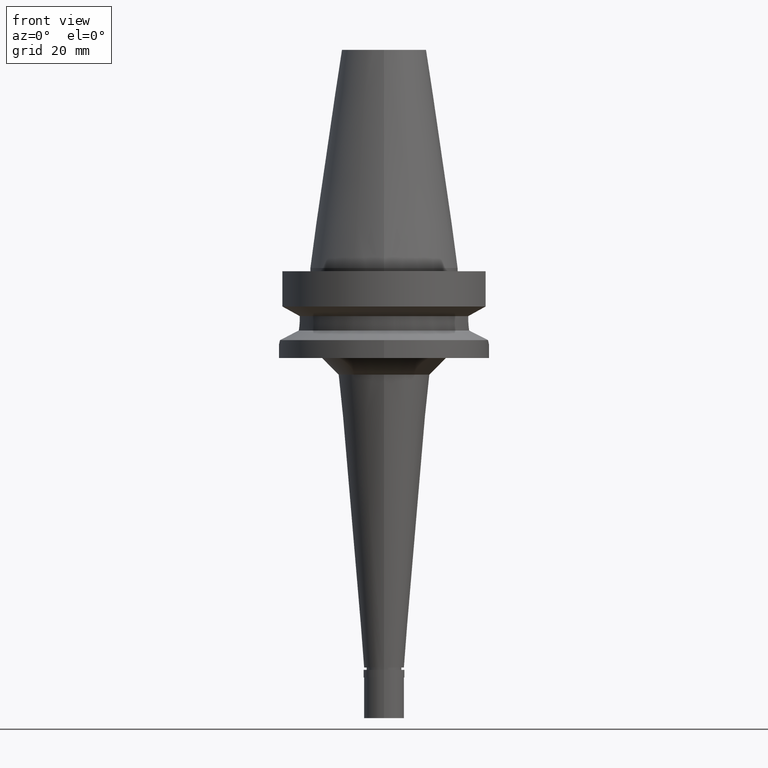
[diagram: clean part render]
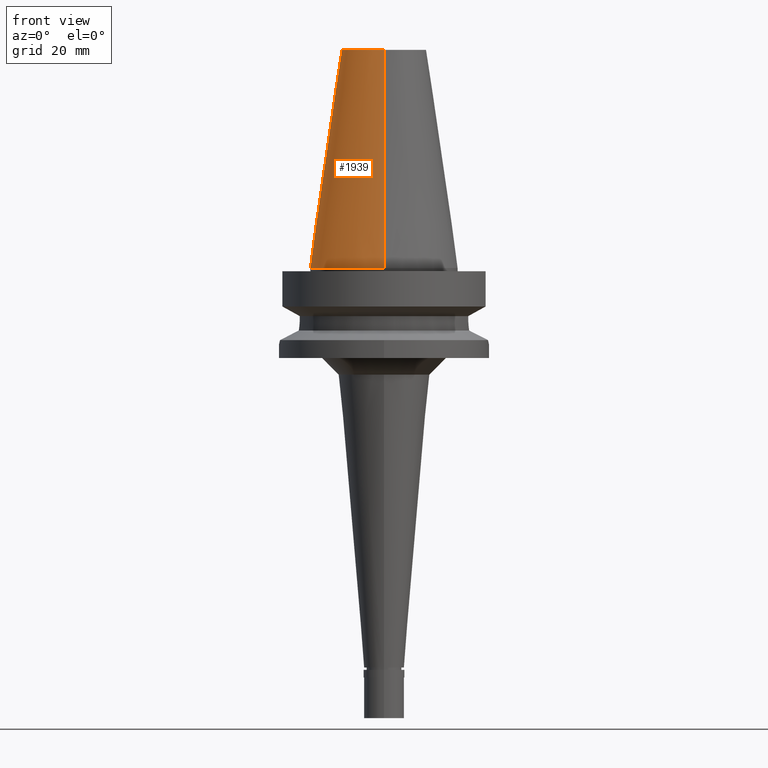
[diagram: same view with one face highlighted and labeled with its STEP entity id]
A machine part, front view. The second image highlights one B-rep face of the part: STEP entity #1939.
In plain terms, the highlighted conical surface has half-angle 8.297 deg.
Its self-contained STEP definition (entity closure, byte-faithful):
#29 = CARTESIAN_POINT ( 'NONE',  ( 0.0000000000000000000, -12.68766899429999917, 65.40000000000000568 ) ) ;
#145 = CARTESIAN_POINT ( 'NONE',  ( 0.0000000000000000000, 12.68766899429999917, 65.40000000000000568 ) ) ;
#172 = DIRECTION ( 'NONE',  ( 0.0000000000000000000, -1.000000000000000000, 0.0000000000000000000 ) ) ;
#195 = EDGE_CURVE ( 'NONE', #1043, #441, #510, .T. ) ;
#284 = CARTESIAN_POINT ( 'NONE',  ( 0.0000000000000000000, 1.625106302469000024E-14, 2.842170943039999687E-14 ) ) ;
#321 = CIRCLE ( 'NONE', #2685, 12.68766899429999917 ) ;
#403 = DIRECTION ( 'NONE',  ( 0.0000000000000000000, 0.0000000000000000000, -1.000000000000000000 ) ) ;
#441 = VERTEX_POINT ( 'NONE', #2623 ) ;
#510 = LINE ( 'NONE', #29, #756 ) ;
#548 = VECTOR ( 'NONE', #2291, 1000.000000000000114 ) ;
#756 = VECTOR ( 'NONE', #1013, 1000.000000000000114 ) ;
#762 = CARTESIAN_POINT ( 'NONE',  ( 0.0000000000000000000, 1.625106302469000024E-14, 32.70000000000000284 ) ) ;
#913 = VERTEX_POINT ( 'NONE', #1879 ) ;
#1013 = DIRECTION ( 'NONE',  ( 0.0000000000000000000, -0.1443043893539925626, -0.9895333461855498891 ) ) ;
#1020 = VERTEX_POINT ( 'NONE', #145 ) ;
#1043 = VERTEX_POINT ( 'NONE', #2417 ) ;
#1099 = CONICAL_SURFACE ( 'NONE', #2782, 17.45633449714999941, 0.1448099680379422438 ) ;
#1215 = DIRECTION ( 'NONE',  ( 0.0000000000000000000, 0.0000000000000000000, -1.000000000000000000 ) ) ;
#1218 = DIRECTION ( 'NONE',  ( 0.0000000000000000000, -1.000000000000000000, 0.0000000000000000000 ) ) ;
#1397 = EDGE_CURVE ( 'NONE', #1020, #913, #2107, .T. ) ;
#1615 = DIRECTION ( 'NONE',  ( 0.0000000000000000000, -1.000000000000000000, 0.0000000000000000000 ) ) ;
#1731 = DIRECTION ( 'NONE',  ( 0.0000000000000000000, 0.0000000000000000000, -1.000000000000000000 ) ) ;
#1812 = CIRCLE ( 'NONE', #2596, 22.22500000000000142 ) ;
#1816 = ORIENTED_EDGE ( 'NONE', *, *, #1397, .T. ) ;
#1838 = FACE_OUTER_BOUND ( 'NONE', #2966, .T. ) ;
#1879 = CARTESIAN_POINT ( 'NONE',  ( 0.0000000000000000000, 22.22500000000000142, 1.065814103639999827E-13 ) ) ;
#1939 = ADVANCED_FACE ( 'NONE', ( #1838 ), #1099, .T. ) ;
#1957 = ORIENTED_EDGE ( 'NONE', *, *, #2614, .T. ) ;
#2018 = ORIENTED_EDGE ( 'NONE', *, *, #195, .F. ) ;
#2107 = LINE ( 'NONE', #2565, #548 ) ;
#2291 = DIRECTION ( 'NONE',  ( 0.0000000000000000000, 0.1443043893539925626, -0.9895333461855498891 ) ) ;
#2417 = CARTESIAN_POINT ( 'NONE',  ( 0.0000000000000000000, -12.68766899429999917, 65.40000000000000568 ) ) ;
#2477 = CARTESIAN_POINT ( 'NONE',  ( 0.0000000000000000000, 1.625106302469000024E-14, 65.40000000000000568 ) ) ;
#2565 = CARTESIAN_POINT ( 'NONE',  ( 0.0000000000000000000, 12.68766899429999917, 65.40000000000000568 ) ) ;
#2596 = AXIS2_PLACEMENT_3D ( 'NONE', #284, #1731, #1218 ) ;
#2614 = EDGE_CURVE ( 'NONE', #1043, #1020, #321, .T. ) ;
#2623 = CARTESIAN_POINT ( 'NONE',  ( 0.0000000000000000000, -22.22500000000000142, 1.065814103639999827E-13 ) ) ;
#2685 = AXIS2_PLACEMENT_3D ( 'NONE', #2477, #403, #172 ) ;
#2697 = ORIENTED_EDGE ( 'NONE', *, *, #2919, .F. ) ;
#2782 = AXIS2_PLACEMENT_3D ( 'NONE', #762, #1215, #1615 ) ;
#2919 = EDGE_CURVE ( 'NONE', #441, #913, #1812, .T. ) ;
#2966 = EDGE_LOOP ( 'NONE', ( #2697, #2018, #1957, #1816 ) ) ;